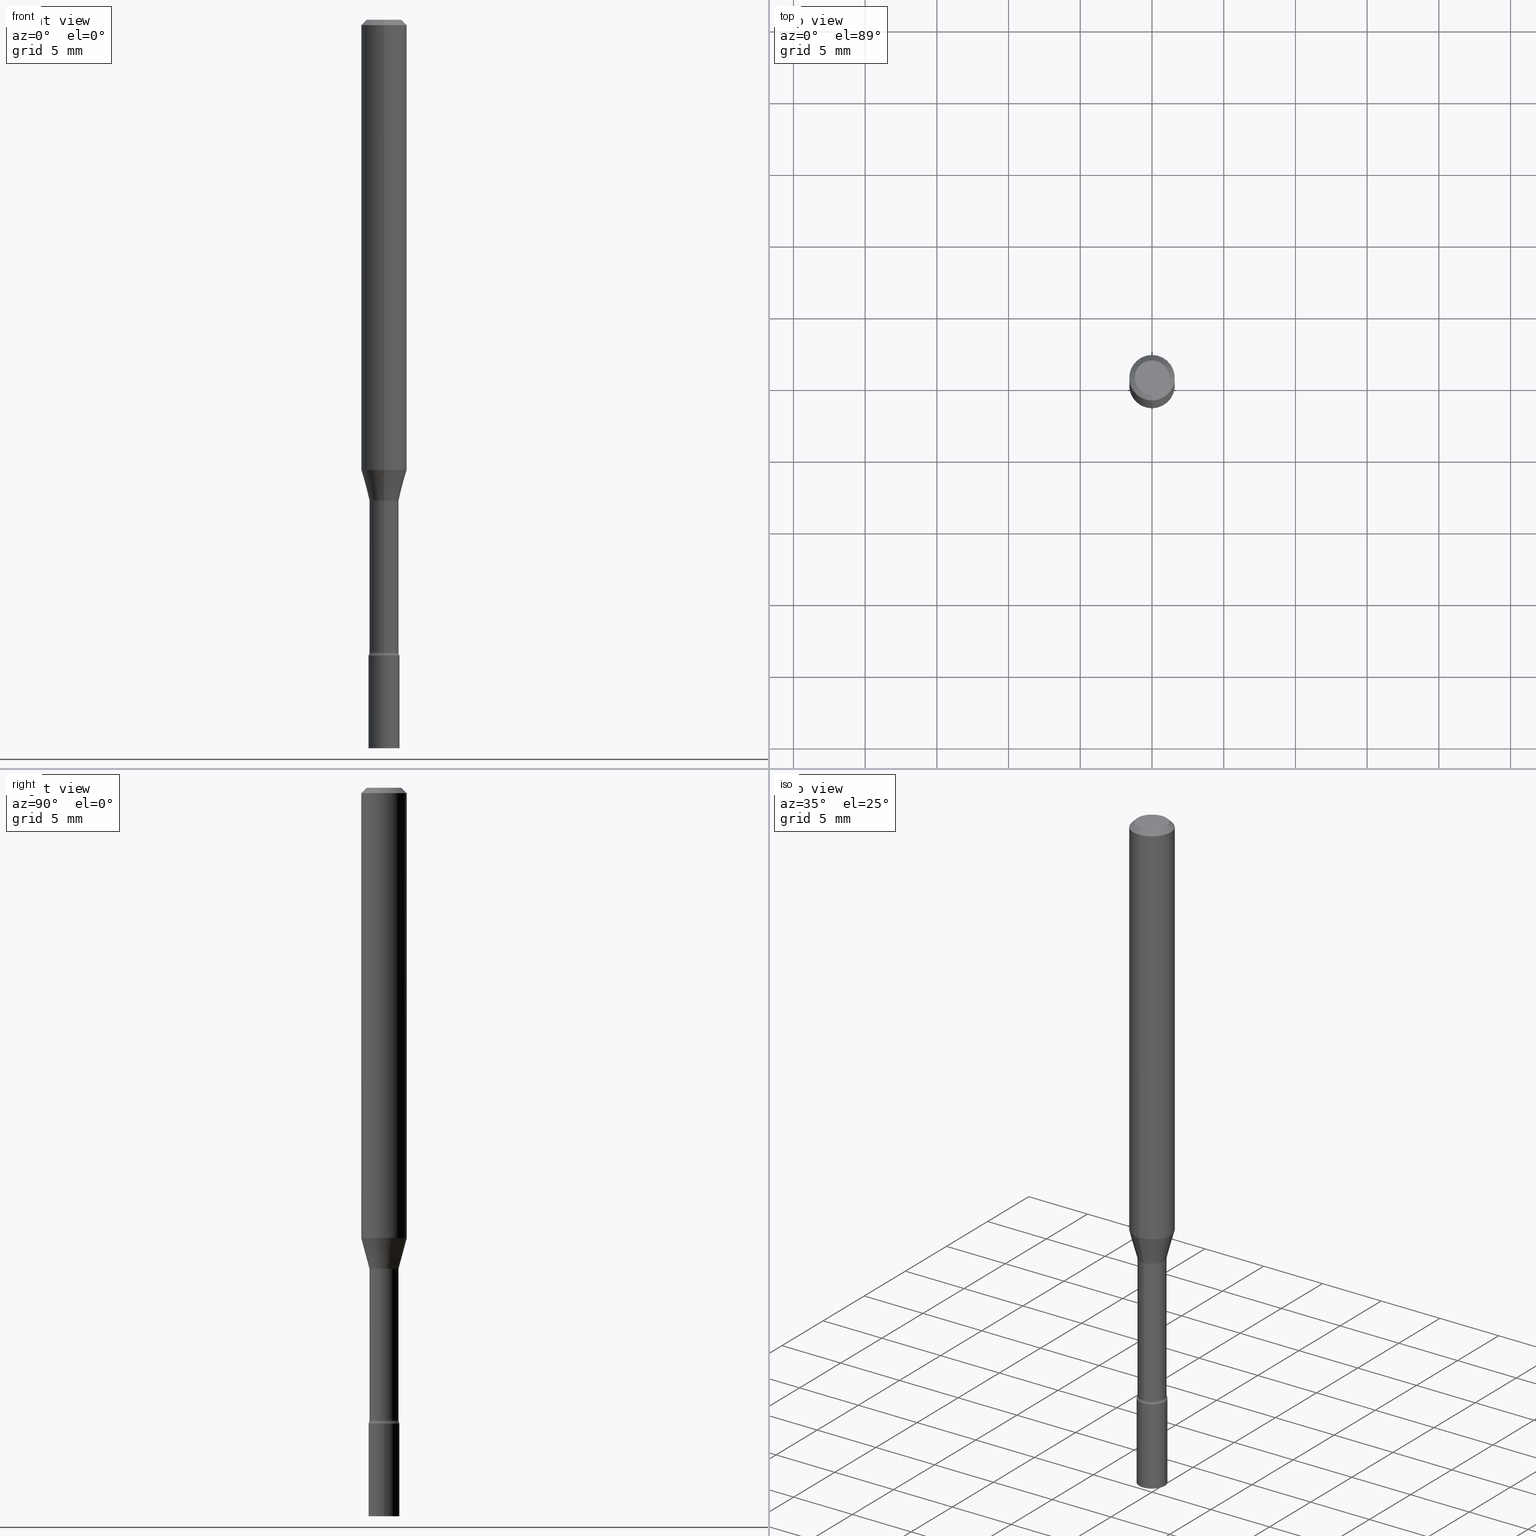
[diagram: canonical four-view strip — front | top / right | iso, engineering-drawing reading convention]
A machine part, canonical four-view strip (front | top / right | iso — engineering-drawing reading convention). The complete STEP part file that produces these views, byte-faithful:
ISO-10303-21;
HEADER;
FILE_DESCRIPTION (( 'STEP AP203' ),
    '1' );
FILE_NAME ('03473.STEP',
    '2024-03-08T21:28:06',
    ( '' ),
    ( '' ),
    'SwSTEP 2.0',
    'SolidWorks 2023',
    '' );
FILE_SCHEMA (( 'CONFIG_CONTROL_DESIGN' ));
ENDSEC;

DATA;
#1 = CARTESIAN_POINT ( 'NONE',  ( 0.000000000000000000, 0.000000000000000000, 0.000000000000000000 ) ) ;
#2 = EDGE_CURVE ( 'NONE', #267, #244, #341, .T. ) ;
#3 = VECTOR ( 'NONE', #179, 39.37007874015748143 ) ;
#4 = APPROVAL_PERSON_ORGANIZATION ( #421, #228, #314 ) ;
#5 = CARTESIAN_POINT ( 'NONE',  ( 0.000000000000000000, 0.000000000000000000, 0.000000000000000000 ) ) ;
#6 = DIMENSIONAL_EXPONENTS ( 1.000000000000000000, 0.000000000000000000, 0.000000000000000000, 0.000000000000000000, 0.000000000000000000, 0.000000000000000000, 0.000000000000000000 ) ;
#7 = CARTESIAN_POINT ( 'NONE',  ( 2.838618229362026185E-16, 0.03994999999999538504, -1.321974787463811474 ) ) ;
#8 = DATE_AND_TIME ( #485, #132 ) ;
#9 = EDGE_CURVE ( 'NONE', #196, #464, #26, .T. ) ;
#10 = DIRECTION ( 'NONE',  ( -2.445445449286633018E-29, 3.491514787251194982E-15, 1.000000000000000000 ) ) ;
#11 = APPLICATION_CONTEXT ( 'configuration controlled 3d designs of mechanical parts and assemblies' ) ;
#12 = APPROVAL_STATUS ( 'not_yet_approved' ) ;
#13 = ORIENTED_EDGE ( 'NONE', *, *, #243, .F. ) ;
#14 = PLANE ( 'NONE',  #118 ) ;
#15 = ADVANCED_FACE ( 'NONE', ( #375 ), #470, .F. ) ;
#16 = AXIS2_PLACEMENT_3D ( 'NONE', #81, #437, #123 ) ;
#17 = PERSON_AND_ORGANIZATION ( #313, #289 ) ;
#18 = ORIENTED_EDGE ( 'NONE', *, *, #86, .T. ) ;
#19 = CIRCLE ( 'NONE', #397, 0.06250000000000000000 ) ;
#20 = APPROVAL_ROLE ( '' ) ;
#21 = DIRECTION ( 'NONE',  ( -2.445445449286633018E-29, 3.491514787251194982E-15, 1.000000000000000000 ) ) ;
#22 = APPLICATION_CONTEXT ( 'configuration controlled 3d designs of mechanical parts and assemblies' ) ;
#23 = CARTESIAN_POINT ( 'NONE',  ( 3.022184816787956639E-29, -4.314961505561019667E-15, -1.235842254289322151 ) ) ;
#24 = ORIENTED_EDGE ( 'NONE', *, *, #214, .T. ) ;
#25 = ORIENTED_EDGE ( 'NONE', *, *, #376, .F. ) ;
#26 = CIRCLE ( 'NONE', #417, 0.06250000000000000000 ) ;
#27 = AXIS2_PLACEMENT_3D ( 'NONE', #329, #95, #372 ) ;
#28 = LINE ( 'NONE', #158, #187 ) ;
#29 = DIRECTION ( 'NONE',  ( 1.000000000000000000, -6.982962677686276177E-15, 0.000000000000000000 ) ) ;
#30 = ORIENTED_EDGE ( 'NONE', *, *, #167, .T. ) ;
#31 = EDGE_LOOP ( 'NONE', ( #53, #514, #428, #494 ) ) ;
#32 = UNCERTAINTY_MEASURE_WITH_UNIT (LENGTH_MEASURE( 1.000000000000000082E-05 ), #127, 'distance_accuracy_value', 'NONE');
#33 = AXIS2_PLACEMENT_3D ( 'NONE', #366, #215, #364 ) ;
#34 = CIRCLE ( 'NONE', #492, 0.04249999999999999611 ) ;
#35 = ORIENTED_EDGE ( 'NONE', *, *, #486, .F. ) ;
#36 = CARTESIAN_POINT ( 'NONE',  ( -0.04249999999999999611, -6.235818144285747159E-15, -2.000000000000000000 ) ) ;
#37 = DIRECTION ( 'NONE',  ( -6.982962677686266711E-15, -1.000000000000000000, 3.491514787251194588E-15 ) ) ;
#38 = ORIENTED_EDGE ( 'NONE', *, *, #373, .F. ) ;
#39 = CARTESIAN_POINT ( 'NONE',  ( 3.232817228075041045E-29, -4.615694518803152700E-15, -1.321974787463811252 ) ) ;
#40 = VECTOR ( 'NONE', #326, 39.37007874015748854 ) ;
#41 = CIRCLE ( 'NONE', #484, 0.06250000000000000000 ) ;
#42 = SHAPE_DEFINITION_REPRESENTATION ( #368, #194 ) ;
#43 = DIRECTION ( 'NONE',  ( -6.982962677686265922E-15, -1.000000000000000000, 6.751786635945950546E-15 ) ) ;
#44 = LINE ( 'NONE', #47, #131 ) ;
#45 = EDGE_CURVE ( 'NONE', #520, #271, #432, .T. ) ;
#46 = FACE_OUTER_BOUND ( 'NONE', #31, .T. ) ;
#47 = CARTESIAN_POINT ( 'NONE',  ( -0.04249999999999999611, 3.019806626980425514E-16, -2.090547413358334859E-30 ) ) ;
#48 = CARTESIAN_POINT ( 'NONE',  ( 4.440892098500929873E-16, 0.06249999999999572564, -1.235842254289322373 ) ) ;
#49 =( NAMED_UNIT ( * ) PLANE_ANGLE_UNIT ( ) SI_UNIT ( $, .RADIAN. ) );
#50 = AXIS2_PLACEMENT_3D ( 'NONE', #446, #87, #280 ) ;
#51 = CONICAL_SURFACE ( 'NONE', #213, 0.04046111260566398471, 0.2617993877991500740 ) ;
#52 = MECHANICAL_CONTEXT ( 'NONE', #22, 'mechanical' ) ;
#53 = ORIENTED_EDGE ( 'NONE', *, *, #257, .F. ) ;
#54 = ORIENTED_EDGE ( 'NONE', *, *, #214, .F. ) ;
#55 = CARTESIAN_POINT ( 'NONE',  ( -3.773273898774340269E-16, -0.04749999999999999362, 1.369346302659450956E-16 ) ) ;
#56 = CIRCLE ( 'NONE', #109, 0.04249999999999999611 ) ;
#57 = EDGE_LOOP ( 'NONE', ( #114, #304 ) ) ;
#58 = MANIFOLD_SOLID_BREP ( 'Body-Move/Copy2[2]', #328 ) ;
#59 = DIRECTION ( 'NONE',  ( -6.982962677686265922E-15, -1.000000000000000000, 3.491514787251194982E-15 ) ) ;
#60 = ORIENTED_EDGE ( 'NONE', *, *, #78, .T. ) ;
#61 = CALENDAR_DATE ( 2024, 8, 3 ) ;
#62 = ADVANCED_FACE ( 'NONE', ( #453 ), #154, .F. ) ;
#63 = CARTESIAN_POINT ( 'NONE',  ( 3.223323310234520288E-29, -4.602139460955186283E-15, -1.318092501787273330 ) ) ;
#64 = DESIGN_CONTEXT ( 'detailed design', #11, 'design' ) ;
#65 = CARTESIAN_POINT ( 'NONE',  ( 3.668168173929956814E-31, -5.237272180876803123E-17, -0.01500000000000003067 ) ) ;
#66 = CALENDAR_DATE ( 2024, 8, 3 ) ;
#67 = ORIENTED_EDGE ( 'NONE', *, *, #291, .F. ) ;
#68 = EDGE_LOOP ( 'NONE', ( #197, #516, #344, #256 ) ) ;
#69 = CIRCLE ( 'NONE', #237, 0.03995000000000000634 ) ;
#70 = VECTOR ( 'NONE', #431, 39.37007874015748143 ) ;
#71 = ORIENTED_EDGE ( 'NONE', *, *, #171, .T. ) ;
#72 = VERTEX_POINT ( 'NONE', #139 ) ;
#73 = EDGE_CURVE ( 'NONE', #464, #196, #450, .T. ) ;
#74 = EDGE_LOOP ( 'NONE', ( #35, #269, #307, #273 ) ) ;
#75 = APPROVAL_ROLE ( '' ) ;
#76 = CIRCLE ( 'NONE', #483, 0.04249999999999999611 ) ;
#77 = CIRCLE ( 'NONE', #206, 0.04749999999999999362 ) ;
#78 = EDGE_CURVE ( 'NONE', #510, #202, #189, .T. ) ;
#79 = VERTEX_POINT ( 'NONE', #339 ) ;
#80 = CC_DESIGN_DATE_AND_TIME_ASSIGNMENT ( #336, #146, ( #172 ) ) ;
#81 = CARTESIAN_POINT ( 'NONE',  ( 0.000000000000000000, 0.000000000000000000, 0.000000000000000000 ) ) ;
#82 = CARTESIAN_POINT ( 'NONE',  ( 7.070350657741693515E-46, -1.009478002453811486E-31, -2.891232212848667046E-17 ) ) ;
#83 = EDGE_CURVE ( 'NONE', #234, #267, #425, .T. ) ;
#84 = CIRCLE ( 'NONE', #334, 0.04046111260566398471 ) ;
#85 = LINE ( 'NONE', #249, #323 ) ;
#86 = EDGE_CURVE ( 'NONE', #234, #473, #84, .T. ) ;
#87 = DIRECTION ( 'NONE',  ( -2.445445449286633018E-29, 3.491514787251194982E-15, 1.000000000000000000 ) ) ;
#88 = DIRECTION ( 'NONE',  ( -6.982962677686265133E-15, -1.000000000000000000, 6.838167693777879394E-15 ) ) ;
#89 = CARTESIAN_POINT ( 'NONE',  ( 3.657913531386922851E-16, 0.04046111260565938422, -1.318092501787273552 ) ) ;
#90 = FACE_OUTER_BOUND ( 'NONE', #353, .T. ) ;
#91 = AXIS2_PLACEMENT_3D ( 'NONE', #239, #115, #275 ) ;
#92 = CIRCLE ( 'NONE', #238, 0.03995000000000005491 ) ;
#93 = CARTESIAN_POINT ( 'NONE',  ( 3.022184816787956639E-29, -4.314961505561019667E-15, -1.235842254289322151 ) ) ;
#94 = CARTESIAN_POINT ( 'NONE',  ( 3.232817228075041045E-29, -4.615694518803152700E-15, -1.321974787463811252 ) ) ;
#95 = DIRECTION ( 'NONE',  ( -2.445445449286633018E-29, 3.491514787251194982E-15, 1.000000000000000000 ) ) ;
#96 = CARTESIAN_POINT ( 'NONE',  ( 3.840629472727447874E-16, 0.04749999999999999362, -1.947592745229183872E-16 ) ) ;
#97 = APPLICATION_PROTOCOL_DEFINITION ( 'international standard', 'config_control_design', 1994, #11 ) ;
#98 = DIRECTION ( 'NONE',  ( -2.445445449286633018E-29, 3.491514787251194982E-15, 1.000000000000000000 ) ) ;
#99 = ADVANCED_FACE ( 'NONE', ( #456 ), #295, .T. ) ;
#100 = FACE_OUTER_BOUND ( 'NONE', #157, .T. ) ;
#101 = AXIS2_PLACEMENT_3D ( 'NONE', #442, #403, #405 ) ;
#102 = APPROVAL_PERSON_ORGANIZATION ( #369, #424, #20 ) ;
#103 = APPLICATION_PROTOCOL_DEFINITION ( 'international standard', 'config_control_design', 1994, #22 ) ;
#104 = CARTESIAN_POINT ( 'NONE',  ( 7.070350657741693515E-46, -1.009478002453811486E-31, -2.891232212848667046E-17 ) ) ;
#105 = DIRECTION ( 'NONE',  ( -6.982962677686265922E-15, -1.000000000000000000, 3.491514787251194982E-15 ) ) ;
#106 = CC_DESIGN_PERSON_AND_ORGANIZATION_ASSIGNMENT ( #220, #374, ( #500 ) ) ;
#107 = DATE_TIME_ROLE ( 'classification_date' ) ;
#108 = DIRECTION ( 'NONE',  ( 1.000000000000000000, -6.982962677686276177E-15, 0.000000000000000000 ) ) ;
#109 = AXIS2_PLACEMENT_3D ( 'NONE', #445, #21, #134 ) ;
#110 = EDGE_CURVE ( 'NONE', #510, #261, #396, .T. ) ;
#111 = DATE_AND_TIME ( #66, #460 ) ;
#112 = EDGE_LOOP ( 'NONE', ( #18, #113, #385, #67 ) ) ;
#113 = ORIENTED_EDGE ( 'NONE', *, *, #243, .T. ) ;
#114 = ORIENTED_EDGE ( 'NONE', *, *, #110, .T. ) ;
#115 = DIRECTION ( 'NONE',  ( -2.445468806185136597E-29, 3.491481338843145583E-15, 1.000000000000000000 ) ) ;
#116 = PERSON_AND_ORGANIZATION_ROLE ( 'classification_officer' ) ;
#117 = DIRECTION ( 'NONE',  ( 2.445445449286633018E-29, -3.491514787251194982E-15, -1.000000000000000000 ) ) ;
#118 = AXIS2_PLACEMENT_3D ( 'NONE', #496, #259, #254 ) ;
#119 = DIRECTION ( 'NONE',  ( -6.982962677686265133E-15, -1.000000000000000000, 3.491514787251194588E-15 ) ) ;
#120 = EDGE_CURVE ( 'NONE', #271, #79, #359, .T. ) ;
#121 = CARTESIAN_POINT ( 'NONE',  ( 4.890937612370273194E-29, -6.982962677686291165E-15, -2.000000000000000000 ) ) ;
#122 = DIRECTION ( 'NONE',  ( -6.982962677686265922E-15, -1.000000000000000000, 3.483106191921935554E-15 ) ) ;
#123 = DIRECTION ( 'NONE',  ( -6.982962677686265922E-15, -1.000000000000000000, 3.491514787251194982E-15 ) ) ;
#124 = DIRECTION ( 'NONE',  ( -2.445445449286633018E-29, 3.491514787251194982E-15, 1.000000000000000000 ) ) ;
#125 = DIRECTION ( 'NONE',  ( -6.982962677686266711E-15, -1.000000000000000000, 0.000000000000000000 ) ) ;
#126 = DIRECTION ( 'NONE',  ( 6.982962677686265922E-15, 1.000000000000000000, -3.483106191921935554E-15 ) ) ;
#127 =( CONVERSION_BASED_UNIT ( 'INCH', #327 ) LENGTH_UNIT ( ) NAMED_UNIT ( #6 ) );
#128 = CARTESIAN_POINT ( 'NONE',  ( 4.246842609821854731E-29, -6.063481716857332136E-15, -1.736633549139569688 ) ) ;
#129 = DIRECTION ( 'NONE',  ( -6.982962677686265922E-15, -1.000000000000000000, 6.751786635945950546E-15 ) ) ;
#130 =( LENGTH_UNIT ( ) NAMED_UNIT ( * ) SI_UNIT ( $, .METRE. ) );
#131 = VECTOR ( 'NONE', #322, 39.37007874015748143 ) ;
#132 = LOCAL_TIME ( 16, 28, 6.000000000000000000, #436 ) ;
#133 = DIRECTION ( 'NONE',  ( -2.445445449286633018E-29, 3.491514787251194982E-15, 1.000000000000000000 ) ) ;
#134 = DIRECTION ( 'NONE',  ( -6.982962677686266711E-15, -1.000000000000000000, 6.427877632151208176E-15 ) ) ;
#135 = FACE_OUTER_BOUND ( 'NONE', #151, .T. ) ;
#136 = DIRECTION ( 'NONE',  ( -2.445445449286633018E-29, 3.491514787251194982E-15, 1.000000000000000000 ) ) ;
#137 = EDGE_CURVE ( 'NONE', #156, #192, #28, .T. ) ;
#138 = COORDINATED_UNIVERSAL_TIME_OFFSET ( 5, 0, .BEHIND. ) ;
#139 = CARTESIAN_POINT ( 'NONE',  ( -0.04249999999999999611, -6.235818144285747159E-15, -1.745000000000000107 ) ) ;
#140 = DIRECTION ( 'NONE',  ( -6.982962677686265922E-15, -1.000000000000000000, 6.751786635945950546E-15 ) ) ;
#141 = AXIS2_PLACEMENT_3D ( 'NONE', #260, #414, #451 ) ;
#142 = AXIS2_PLACEMENT_3D ( 'NONE', #208, #325, #126 ) ;
#143 = EDGE_LOOP ( 'NONE', ( #502, #462, #475, #240 ) ) ;
#144 = CARTESIAN_POINT ( 'NONE',  ( 2.929212428171439828E-16, 0.03994999999999399726, -1.736633549139569910 ) ) ;
#145 = ORIENTED_EDGE ( 'NONE', *, *, #83, .F. ) ;
#146 = DATE_TIME_ROLE ( 'creation_date' ) ;
#147 = ADVANCED_FACE ( 'NONE', ( #476 ), #282, .F. ) ;
#148 = ORIENTED_EDGE ( 'NONE', *, *, #173, .F. ) ;
#149 = DIRECTION ( 'NONE',  ( -6.982962677686265922E-15, -1.000000000000000000, 3.491514787251194982E-15 ) ) ;
#150 = CARTESIAN_POINT ( 'NONE',  ( 2.838618229361602172E-16, 0.03995000000000003409, -1.394860157506853398E-16 ) ) ;
#151 = EDGE_LOOP ( 'NONE', ( #153, #395, #60, #512 ) ) ;
#152 = PERSON_AND_ORGANIZATION_ROLE ( 'creator' ) ;
#153 = ORIENTED_EDGE ( 'NONE', *, *, #195, .F. ) ;
#154 = TOROIDAL_SURFACE ( 'NONE', #247, 0.05495000000000003354, 0.01499999999999998036 ) ;
#155 = FACE_OUTER_BOUND ( 'NONE', #186, .T. ) ;
#156 = VERTEX_POINT ( 'NONE', #426 ) ;
#157 = EDGE_LOOP ( 'NONE', ( #279, #379 ) ) ;
#158 = CARTESIAN_POINT ( 'NONE',  ( 0.04249999999999999611, -2.967759138016663549E-16, 2.072375129713272502E-30 ) ) ;
#159 = CARTESIAN_POINT ( 'NONE',  ( -4.364351673553916201E-16, -0.06250000000000000000, 2.182196742031996864E-16 ) ) ;
#160 = CARTESIAN_POINT ( 'NONE',  ( 2.967759138017089534E-16, 0.04249999999999390377, -1.745000000000000329 ) ) ;
#161 = PERSON_AND_ORGANIZATION_ROLE ( 'design_supplier' ) ;
#162 = ORIENTED_EDGE ( 'NONE', *, *, #383, .T. ) ;
#163 = APPROVAL_STATUS ( 'not_yet_approved' ) ;
#164 = AXIS2_PLACEMENT_3D ( 'NONE', #266, #343, #301 ) ;
#165 = FACE_OUTER_BOUND ( 'NONE', #509, .T. ) ;
#166 = CARTESIAN_POINT ( 'NONE',  ( 3.668168173929956814E-31, -5.237272180876803123E-17, -0.01500000000000003067 ) ) ;
#167 = EDGE_CURVE ( 'NONE', #520, #346, #212, .T. ) ;
#168 = TOROIDAL_SURFACE ( 'NONE', #50, 0.05494999999999999191, 0.01500000000000001506 ) ;
#169 = LOCAL_TIME ( 16, 28, 6.000000000000000000, #178 ) ;
#170 = DIRECTION ( 'NONE',  ( -6.982962677686265922E-15, -1.000000000000000000, 6.838167693777870716E-15 ) ) ;
#171 = EDGE_CURVE ( 'NONE', #346, #79, #56, .T. ) ;
#172 = PRODUCT_DEFINITION ( 'UNKNOWN', '', #188, #64 ) ;
#173 = EDGE_CURVE ( 'NONE', #520, #267, #227, .T. ) ;
#174 = CARTESIAN_POINT ( 'NONE',  ( 2.967759138017151657E-16, 0.04249999999999301559, -2.000000000000000444 ) ) ;
#175 = DIRECTION ( 'NONE',  ( -2.445445449286633018E-29, 3.491514787251194982E-15, 1.000000000000000000 ) ) ;
#176 = AXIS2_PLACEMENT_3D ( 'NONE', #166, #117, #441 ) ;
#177 = AXIS2_PLACEMENT_3D ( 'NONE', #415, #175, #292 ) ;
#178 = COORDINATED_UNIVERSAL_TIME_OFFSET ( 5, 0, .BEHIND. ) ;
#179 = DIRECTION ( 'NONE',  ( 4.937700262164548042E-15, 0.7071067811865451302, -0.7071067811865499042 ) ) ;
#180 = APPROVAL_DATE_TIME ( #290, #424 ) ;
#181 = EDGE_CURVE ( 'NONE', #244, #267, #69, .T. ) ;
#182 = ORIENTED_EDGE ( 'NONE', *, *, #365, .F. ) ;
#183 = DIRECTION ( 'NONE',  ( -2.445445449286633018E-29, 3.491514787251194982E-15, 1.000000000000000000 ) ) ;
#184 = ORIENTED_EDGE ( 'NONE', *, *, #406, .T. ) ;
#185 = LINE ( 'NONE', #150, #231 ) ;
#186 = EDGE_LOOP ( 'NONE', ( #480, #226, #420, #469 ) ) ;
#187 = VECTOR ( 'NONE', #467, 39.37007874015748143 ) ;
#188 = PRODUCT_DEFINITION_FORMATION_WITH_SPECIFIED_SOURCE ( 'ANY', '', #500, .NOT_KNOWN. ) ;
#189 = LINE ( 'NONE', #216, #3 ) ;
#190 = EDGE_LOOP ( 'NONE', ( #233, #277, #472, #145 ) ) ;
#191 = CARTESIAN_POINT ( 'NONE',  ( -3.837137991388180854E-16, -0.05495000000000609813, -1.736633549139569244 ) ) ;
#192 = VERTEX_POINT ( 'NONE', #490 ) ;
#193 = CLOSED_SHELL ( 'NONE', ( #268, #517, #448, #99 ) ) ;
#194 = ADVANCED_BREP_SHAPE_REPRESENTATION ( '03473', ( #401, #58, #360 ), #335 ) ;
#195 = EDGE_CURVE ( 'NONE', #261, #309, #85, .T. ) ;
#196 = VERTEX_POINT ( 'NONE', #48 ) ;
#197 = ORIENTED_EDGE ( 'NONE', *, *, #400, .F. ) ;
#198 = LINE ( 'NONE', #363, #278 ) ;
#199 = EDGE_CURVE ( 'NONE', #384, #72, #44, .T. ) ;
#200 = CARTESIAN_POINT ( 'NONE',  ( 3.904432333002176917E-16, 0.05494999999999397589, -1.736633549139569910 ) ) ;
#201 = FACE_OUTER_BOUND ( 'NONE', #222, .T. ) ;
#202 = VERTEX_POINT ( 'NONE', #318 ) ;
#203 = CYLINDRICAL_SURFACE ( 'NONE', #16, 0.06250000000000000000 ) ;
#204 =( NAMED_UNIT ( * ) SI_UNIT ( $, .STERADIAN. ) SOLID_ANGLE_UNIT ( ) );
#205 = VECTOR ( 'NONE', #362, 39.37007874015748854 ) ;
#206 = AXIS2_PLACEMENT_3D ( 'NONE', #82, #393, #37 ) ;
#207 = EDGE_LOOP ( 'NONE', ( #357, #54 ) ) ;
#208 = CARTESIAN_POINT ( 'NONE',  ( 3.668168173929956814E-31, -5.237272180876803123E-17, -0.01500000000000003067 ) ) ;
#209 = CARTESIAN_POINT ( 'NONE',  ( -4.364351673553912750E-16, -0.06250000000000005551, -0.01499999999999981209 ) ) ;
#210 = DIRECTION ( 'NONE',  ( 1.000000000000000000, -6.982962677686276177E-15, 0.000000000000000000 ) ) ;
#211 = PRODUCT_RELATED_PRODUCT_CATEGORY ( 'detail', '', ( #500 ) ) ;
#212 = CIRCLE ( 'NONE', #489, 0.01499999999999997689 ) ;
#213 = AXIS2_PLACEMENT_3D ( 'NONE', #409, #258, #129 ) ;
#214 = EDGE_CURVE ( 'NONE', #384, #156, #503, .T. ) ;
#215 = DIRECTION ( 'NONE',  ( 1.000000000000000000, -7.105427357601001070E-15, 4.926315918166940991E-29 ) ) ;
#216 = CARTESIAN_POINT ( 'NONE',  ( 4.364351673553919652E-16, 0.06249999999999995143, -0.01500000000000024751 ) ) ;
#217 = FACE_OUTER_BOUND ( 'NONE', #390, .T. ) ;
#218 = PLANE ( 'NONE',  #380 ) ;
#219 = AXIS2_PLACEMENT_3D ( 'NONE', #232, #382, #149 ) ;
#220 = PERSON_AND_ORGANIZATION ( #313, #289 ) ;
#221 = ORIENTED_EDGE ( 'NONE', *, *, #486, .T. ) ;
#222 = EDGE_LOOP ( 'NONE', ( #229, #429, #286, #148 ) ) ;
#223 = EDGE_LOOP ( 'NONE', ( #387, #435, #30, #71 ) ) ;
#224 = ADVANCED_FACE ( 'NONE', ( #481 ), #288, .T. ) ;
#225 = DATE_AND_TIME ( #61, #381 ) ;
#226 = ORIENTED_EDGE ( 'NONE', *, *, #199, .T. ) ;
#227 = LINE ( 'NONE', #242, #252 ) ;
#228 = APPROVAL ( #163, 'UNSPECIFIED' ) ;
#229 = ORIENTED_EDGE ( 'NONE', *, *, #45, .T. ) ;
#230 = AXIS2_PLACEMENT_3D ( 'NONE', #121, #319, #210 ) ;
#231 = VECTOR ( 'NONE', #303, 39.37007874015748143 ) ;
#232 = CARTESIAN_POINT ( 'NONE',  ( 4.246883172195400307E-29, -6.063423629229748682E-15, -1.736633549139569688 ) ) ;
#233 = ORIENTED_EDGE ( 'NONE', *, *, #406, .F. ) ;
#234 = VERTEX_POINT ( 'NONE', #487 ) ;
#235 = EDGE_LOOP ( 'NONE', ( #182, #221, #348, #466 ) ) ;
#236 = DIRECTION ( 'NONE',  ( 1.000000000000000000, -7.105427357601001070E-15, 4.926315918166940991E-29 ) ) ;
#237 = AXIS2_PLACEMENT_3D ( 'NONE', #39, #444, #88 ) ;
#238 = AXIS2_PLACEMENT_3D ( 'NONE', #128, #251, #170 ) ;
#239 = CARTESIAN_POINT ( 'NONE',  ( 4.267343066793063832E-29, -6.092634936281288846E-15, -1.745000000000000107 ) ) ;
#240 = ORIENTED_EDGE ( 'NONE', *, *, #383, .F. ) ;
#241 = ADVANCED_FACE ( 'NONE', ( #246 ), #203, .T. ) ;
#242 = CARTESIAN_POINT ( 'NONE',  ( -2.789693589735665255E-16, -0.03995000000000003409, 1.394860157506853398E-16 ) ) ;
#243 = EDGE_CURVE ( 'NONE', #473, #196, #281, .T. ) ;
#244 = VERTEX_POINT ( 'NONE', #7 ) ;
#245 = DIRECTION ( 'NONE',  ( -2.445445449286633018E-29, 3.491514787251194982E-15, 1.000000000000000000 ) ) ;
#246 = FACE_OUTER_BOUND ( 'NONE', #143, .T. ) ;
#247 = AXIS2_PLACEMENT_3D ( 'NONE', #418, #499, #59 ) ;
#248 = CARTESIAN_POINT ( 'NONE',  ( -4.364351673553612490E-16, -0.06250000000000427436, -1.235842254289321929 ) ) ;
#249 = CARTESIAN_POINT ( 'NONE',  ( -4.287811248607203282E-16, -0.06250000000000005551, -0.01499999999999981209 ) ) ;
#250 = APPROVAL ( #515, 'UNSPECIFIED' ) ;
#251 = DIRECTION ( 'NONE',  ( -2.445445449286633018E-29, 3.491514787251194982E-15, 1.000000000000000000 ) ) ;
#252 = VECTOR ( 'NONE', #124, 39.37007874015748143 ) ;
#253 = SECURITY_CLASSIFICATION ( '', '', #312 ) ;
#254 = DIRECTION ( 'NONE',  ( 1.000000000000000000, -6.982962677686265922E-15, 4.876176775795935793E-29 ) ) ;
#255 = DIRECTION ( 'NONE',  ( -2.445445449286633018E-29, 3.491514787251194982E-15, 1.000000000000000000 ) ) ;
#256 = ORIENTED_EDGE ( 'NONE', *, *, #78, .F. ) ;
#257 = EDGE_CURVE ( 'NONE', #473, #244, #270, .T. ) ;
#258 = DIRECTION ( 'NONE',  ( -2.445445449286633018E-29, 3.491514787251194982E-15, 1.000000000000000000 ) ) ;
#259 = DIRECTION ( 'NONE',  ( -2.438088387897960049E-29, 3.491481338843145188E-15, 1.000000000000000000 ) ) ;
#260 = CARTESIAN_POINT ( 'NONE',  ( -3.837137991388278969E-16, -0.05495000000000461321, -1.321974787463810808 ) ) ;
#261 = VERTEX_POINT ( 'NONE', #55 ) ;
#262 = CC_DESIGN_APPROVAL ( #228, ( #253 ) ) ;
#263 = ADVANCED_FACE ( 'NONE', ( #100 ), #347, .F. ) ;
#264 = CC_DESIGN_PERSON_AND_ORGANIZATION_ASSIGNMENT ( #519, #152, ( #188 ) ) ;
#265 = DIRECTION ( 'NONE',  ( -6.982962677686265922E-15, -1.000000000000000000, 6.838167693777870716E-15 ) ) ;
#266 = CARTESIAN_POINT ( 'NONE',  ( 0.000000000000000000, 0.000000000000000000, 0.000000000000000000 ) ) ;
#267 = VERTEX_POINT ( 'NONE', #477 ) ;
#268 = ADVANCED_FACE ( 'NONE', ( #155 ), #272, .T. ) ;
#269 = ORIENTED_EDGE ( 'NONE', *, *, #120, .T. ) ;
#270 = CIRCLE ( 'NONE', #33, 0.01500000000000001159 ) ;
#271 = VERTEX_POINT ( 'NONE', #144 ) ;
#272 = CYLINDRICAL_SURFACE ( 'NONE', #164, 0.04249999999999999611 ) ;
#273 = ORIENTED_EDGE ( 'NONE', *, *, #167, .F. ) ;
#274 = COORDINATED_UNIVERSAL_TIME_OFFSET ( 5, 0, .BEHIND. ) ;
#275 = DIRECTION ( 'NONE',  ( 1.000000000000000000, -6.982962677686276177E-15, 0.000000000000000000 ) ) ;
#276 = AXIS2_PLACEMENT_3D ( 'NONE', #439, #245, #43 ) ;
#277 = ORIENTED_EDGE ( 'NONE', *, *, #257, .T. ) ;
#278 = VECTOR ( 'NONE', #518, 39.37007874015748143 ) ;
#279 = ORIENTED_EDGE ( 'NONE', *, *, #171, .F. ) ;
#280 = DIRECTION ( 'NONE',  ( -6.982962677686265922E-15, -1.000000000000000000, 3.491514787251194982E-15 ) ) ;
#281 = LINE ( 'NONE', #398, #205 ) ;
#282 = TOROIDAL_SURFACE ( 'NONE', #219, 0.05495000000000003354, 0.01499999999999998036 ) ;
#283 = CARTESIAN_POINT ( 'NONE',  ( -2.825384392229807221E-16, -0.04046111260566858520, -1.318092501787272885 ) ) ;
#284 = FACE_OUTER_BOUND ( 'NONE', #422, .T. ) ;
#285 = EDGE_CURVE ( 'NONE', #192, #72, #34, .T. ) ;
#286 = ORIENTED_EDGE ( 'NONE', *, *, #2, .F. ) ;
#287 = CARTESIAN_POINT ( 'NONE',  ( 3.668168173929956814E-31, -5.237272180876803123E-17, -0.01500000000000003067 ) ) ;
#288 = CONICAL_SURFACE ( 'NONE', #176, 0.06250000000000000000, 0.7853981633974483900 ) ;
#289 = ORGANIZATION ( 'UNSPECIFIED', 'UNSPECIFIED', '' ) ;
#290 = DATE_AND_TIME ( #493, #433 ) ;
#291 = EDGE_CURVE ( 'NONE', #234, #464, #474, .T. ) ;
#292 = DIRECTION ( 'NONE',  ( -6.982962677686265922E-15, -1.000000000000000000, 3.491514787251194982E-15 ) ) ;
#293 = DIRECTION ( 'NONE',  ( -6.982962677686266711E-15, -1.000000000000000000, 6.427877632151208176E-15 ) ) ;
#294 = DIRECTION ( 'NONE',  ( -6.982962677686265133E-15, -1.000000000000000000, 6.838167693777879394E-15 ) ) ;
#295 = PLANE ( 'NONE',  #350 ) ;
#296 = AXIS2_PLACEMENT_3D ( 'NONE', #377, #133, #265 ) ;
#297 = AXIS2_PLACEMENT_3D ( 'NONE', #1, #482, #119 ) ;
#298 = CC_DESIGN_PERSON_AND_ORGANIZATION_ASSIGNMENT ( #386, #161, ( #188 ) ) ;
#299 = DIRECTION ( 'NONE',  ( 1.000000000000000000, 0.000000000000000000, 0.000000000000000000 ) ) ;
#300 = DIRECTION ( 'NONE',  ( 2.445445449286632458E-29, -3.491514787251194982E-15, -1.000000000000000000 ) ) ;
#301 = DIRECTION ( 'NONE',  ( 1.000000000000000000, -6.982962677686267499E-15, 4.876176775795935793E-29 ) ) ;
#302 = ORIENTED_EDGE ( 'NONE', *, *, #137, .T. ) ;
#303 = DIRECTION ( 'NONE',  ( -2.445445449286633018E-29, 3.491514787251194982E-15, 1.000000000000000000 ) ) ;
#304 = ORIENTED_EDGE ( 'NONE', *, *, #400, .T. ) ;
#305 = AXIS2_PLACEMENT_3D ( 'NONE', #160, #311, #349 ) ;
#306 = CIRCLE ( 'NONE', #27, 0.04046111260566398471 ) ;
#307 = ORIENTED_EDGE ( 'NONE', *, *, #508, .T. ) ;
#308 = CARTESIAN_POINT ( 'NONE',  ( 4.267343066793063832E-29, -6.092634936281288846E-15, -1.745000000000000107 ) ) ;
#309 = VERTEX_POINT ( 'NONE', #209 ) ;
#310 = ORIENTED_EDGE ( 'NONE', *, *, #291, .T. ) ;
#311 = DIRECTION ( 'NONE',  ( -2.445445449286632458E-29, 3.491514787251194982E-15, 1.000000000000000000 ) ) ;
#312 = SECURITY_CLASSIFICATION_LEVEL ( 'unclassified' ) ;
#313 = PERSON ( 'UNSPECIFIED', 'UNSPECIFIED', 'UNSPECIFIED', ('UNSPECIFIED'), ('UNSPECIFIED'), ('UNSPECIFIED') ) ;
#314 = APPROVAL_ROLE ( '' ) ;
#315 = CC_DESIGN_DATE_AND_TIME_ASSIGNMENT ( #225, #107, ( #253 ) ) ;
#316 = CIRCLE ( 'NONE', #91, 0.04249999999999999611 ) ;
#317 = AXIS2_PLACEMENT_3D ( 'NONE', #404, #332, #320 ) ;
#318 = CARTESIAN_POINT ( 'NONE',  ( 4.440892098500929873E-16, 0.06249999999999995143, -0.01500000000000024751 ) ) ;
#319 = DIRECTION ( 'NONE',  ( -2.445468806185136597E-29, 3.491481338843145583E-15, 1.000000000000000000 ) ) ;
#320 = DIRECTION ( 'NONE',  ( 1.000000000000000000, -6.982962677686267499E-15, 4.876176775795935793E-29 ) ) ;
#321 = APPROVAL_DATE_TIME ( #8, #228 ) ;
#322 = DIRECTION ( 'NONE',  ( -2.445468806185136877E-29, 3.491481338843145188E-15, 1.000000000000000000 ) ) ;
#323 = VECTOR ( 'NONE', #402, 39.37007874015748143 ) ;
#324 = ADVANCED_FACE ( 'NONE', ( #394 ), #356, .T. ) ;
#325 = DIRECTION ( 'NONE',  ( 2.445445449286633018E-29, -3.491514787251194982E-15, -1.000000000000000000 ) ) ;
#326 = DIRECTION ( 'NONE',  ( -1.807323732225328562E-15, -0.2588190451025179639, 0.9659258262890690894 ) ) ;
#327 = LENGTH_MEASURE_WITH_UNIT ( LENGTH_MEASURE( 0.02539999999999999897 ), #130 );
#328 = CLOSED_SHELL ( 'NONE', ( #15, #399, #147, #224, #241, #412, #331, #434, #440, #358, #263, #62, #324, #330 ) ) ;
#329 = CARTESIAN_POINT ( 'NONE',  ( 3.223323310234520288E-29, -4.602139460955186283E-15, -1.318092501787273330 ) ) ;
#330 = ADVANCED_FACE ( 'NONE', ( #46 ), #168, .F. ) ;
#331 = ADVANCED_FACE ( 'NONE', ( #165 ), #367, .T. ) ;
#332 = DIRECTION ( 'NONE',  ( -2.445468806185136597E-29, 3.491481338843145583E-15, 1.000000000000000000 ) ) ;
#333 = DIRECTION ( 'NONE',  ( 2.438088387897960049E-29, -3.491481338843145188E-15, -1.000000000000000000 ) ) ;
#334 = AXIS2_PLACEMENT_3D ( 'NONE', #63, #370, #140 ) ;
#335 =( GEOMETRIC_REPRESENTATION_CONTEXT ( 3 ) GLOBAL_UNCERTAINTY_ASSIGNED_CONTEXT ( ( #32 ) ) GLOBAL_UNIT_ASSIGNED_CONTEXT ( ( #127, #49, #204 ) ) REPRESENTATION_CONTEXT ( 'NONE', 'WORKASPACE' ) );
#336 = DATE_AND_TIME ( #337, #169 ) ;
#337 = CALENDAR_DATE ( 2024, 8, 3 ) ;
#338 = CARTESIAN_POINT ( 'NONE',  ( 3.232848105305976376E-29, -4.615650300851030950E-15, -1.321974787463811252 ) ) ;
#339 = CARTESIAN_POINT ( 'NONE',  ( 3.019806626980851006E-16, 0.04249999999999389683, -1.745000000000000329 ) ) ;
#340 = EDGE_CURVE ( 'NONE', #156, #384, #76, .T. ) ;
#341 = CIRCLE ( 'NONE', #407, 0.03995000000000000634 ) ;
#342 = AXIS2_PLACEMENT_3D ( 'NONE', #413, #136, #293 ) ;
#343 = DIRECTION ( 'NONE',  ( -2.445468806185136597E-29, 3.491481338843145583E-15, 1.000000000000000000 ) ) ;
#344 = ORIENTED_EDGE ( 'NONE', *, *, #423, .T. ) ;
#345 = ORIENTED_EDGE ( 'NONE', *, *, #9, .T. ) ;
#346 = VERTEX_POINT ( 'NONE', #478 ) ;
#347 = PLANE ( 'NONE',  #305 ) ;
#348 = ORIENTED_EDGE ( 'NONE', *, *, #173, .T. ) ;
#349 = DIRECTION ( 'NONE',  ( -6.982962677686265922E-15, -1.000000000000000000, 3.491514787251194982E-15 ) ) ;
#350 = AXIS2_PLACEMENT_3D ( 'NONE', #174, #333, #458 ) ;
#351 = ORIENTED_EDGE ( 'NONE', *, *, #9, .F. ) ;
#352 = APPROVAL_DATE_TIME ( #111, #250 ) ;
#353 = EDGE_LOOP ( 'NONE', ( #438, #465 ) ) ;
#354 = EDGE_CURVE ( 'NONE', #72, #192, #316, .T. ) ;
#355 = CYLINDRICAL_SURFACE ( 'NONE', #297, 0.03995000000000003409 ) ;
#356 = CYLINDRICAL_SURFACE ( 'NONE', #101, 0.03995000000000003409 ) ;
#357 = ORIENTED_EDGE ( 'NONE', *, *, #340, .F. ) ;
#358 = ADVANCED_FACE ( 'NONE', ( #392 ), #218, .F. ) ;
#359 = CIRCLE ( 'NONE', #389, 0.01499999999999997689 ) ;
#360 = AXIS2_PLACEMENT_3D ( 'NONE', #5, #410, #299 ) ;
#361 = LINE ( 'NONE', #159, #70 ) ;
#362 = DIRECTION ( 'NONE',  ( 1.839019923739598738E-15, 0.2588190451025247363, 0.9659258262890673130 ) ) ;
#363 = CARTESIAN_POINT ( 'NONE',  ( 4.440892098500625669E-16, 0.06250000000000000000, -2.182196742031996864E-16 ) ) ;
#364 = DIRECTION ( 'NONE',  ( 7.105427357601001859E-15, 1.000000000000000000, 0.000000000000000000 ) ) ;
#365 = EDGE_CURVE ( 'NONE', #271, #244, #185, .T. ) ;
#366 = CARTESIAN_POINT ( 'NONE',  ( 3.904432333002072886E-16, 0.05494999999999537060, -1.321974787463811474 ) ) ;
#367 = CONICAL_SURFACE ( 'NONE', #276, 0.04046111260566398471, 0.2617993877991500740 ) ;
#368 = PRODUCT_DEFINITION_SHAPE ( 'NONE', 'NONE',  #172 ) ;
#369 = PERSON_AND_ORGANIZATION ( #313, #289 ) ;
#370 = DIRECTION ( 'NONE',  ( -2.445445449286633018E-29, 3.491514787251194982E-15, 1.000000000000000000 ) ) ;
#371 = CYLINDRICAL_SURFACE ( 'NONE', #177, 0.06250000000000000000 ) ;
#372 = DIRECTION ( 'NONE',  ( -6.982962677686265922E-15, -1.000000000000000000, 6.751786635945950546E-15 ) ) ;
#373 = EDGE_CURVE ( 'NONE', #202, #309, #19, .T. ) ;
#374 = PERSON_AND_ORGANIZATION_ROLE ( 'design_owner' ) ;
#375 = FACE_OUTER_BOUND ( 'NONE', #190, .T. ) ;
#376 = EDGE_CURVE ( 'NONE', #196, #202, #198, .T. ) ;
#377 = CARTESIAN_POINT ( 'NONE',  ( 4.246842609821854731E-29, -6.063481716857332136E-15, -1.736633549139569688 ) ) ;
#378 = DIRECTION ( 'NONE',  ( -2.445468806185136597E-29, 3.491481338843145583E-15, 1.000000000000000000 ) ) ;
#379 = ORIENTED_EDGE ( 'NONE', *, *, #508, .F. ) ;
#380 = AXIS2_PLACEMENT_3D ( 'NONE', #461, #300, #463 ) ;
#381 = LOCAL_TIME ( 16, 28, 6.000000000000000000, #419 ) ;
#382 = DIRECTION ( 'NONE',  ( -2.445445449286633018E-29, 3.491514787251194982E-15, 1.000000000000000000 ) ) ;
#383 = EDGE_CURVE ( 'NONE', #464, #309, #361, .T. ) ;
#384 = VERTEX_POINT ( 'NONE', #36 ) ;
#385 = ORIENTED_EDGE ( 'NONE', *, *, #73, .F. ) ;
#386 = PERSON_AND_ORGANIZATION ( #313, #289 ) ;
#387 = ORIENTED_EDGE ( 'NONE', *, *, #120, .F. ) ;
#388 = DIRECTION ( 'NONE',  ( 7.105427357601001859E-15, 1.000000000000000000, 0.000000000000000000 ) ) ;
#389 = AXIS2_PLACEMENT_3D ( 'NONE', #200, #236, #388 ) ;
#390 = EDGE_LOOP ( 'NONE', ( #25, #345, #162, #38 ) ) ;
#391 = CC_DESIGN_PERSON_AND_ORGANIZATION_ASSIGNMENT ( #17, #455, ( #172 ) ) ;
#392 = FACE_OUTER_BOUND ( 'NONE', #57, .T. ) ;
#393 = DIRECTION ( 'NONE',  ( -2.445445449286633018E-29, 3.491514787251194982E-15, 1.000000000000000000 ) ) ;
#394 = FACE_OUTER_BOUND ( 'NONE', #235, .T. ) ;
#395 = ORIENTED_EDGE ( 'NONE', *, *, #110, .F. ) ;
#396 = CIRCLE ( 'NONE', #443, 0.04749999999999999362 ) ;
#397 = AXIS2_PLACEMENT_3D ( 'NONE', #65, #183, #122 ) ;
#398 = CARTESIAN_POINT ( 'NONE',  ( 2.874934964272917801E-16, 0.04046111260565938422, -1.318092501787273552 ) ) ;
#399 = ADVANCED_FACE ( 'NONE', ( #201 ), #355, .T. ) ;
#400 = EDGE_CURVE ( 'NONE', #261, #510, #77, .T. ) ;
#401 = MANIFOLD_SOLID_BREP ( 'Body-Move/Copy2[1]', #193 ) ;
#402 = DIRECTION ( 'NONE',  ( -4.851104656540964275E-15, -0.7071067811865500152, -0.7071067811865450192 ) ) ;
#403 = DIRECTION ( 'NONE',  ( -2.445445449286633018E-29, 3.491514787251194982E-15, 1.000000000000000000 ) ) ;
#404 = CARTESIAN_POINT ( 'NONE',  ( 0.000000000000000000, 0.000000000000000000, 0.000000000000000000 ) ) ;
#405 = DIRECTION ( 'NONE',  ( -6.982962677686265133E-15, -1.000000000000000000, 3.491514787251194588E-15 ) ) ;
#406 = EDGE_CURVE ( 'NONE', #473, #234, #306, .T. ) ;
#407 = AXIS2_PLACEMENT_3D ( 'NONE', #94, #498, #294 ) ;
#408 = CC_DESIGN_APPROVAL ( #424, ( #172 ) ) ;
#409 = CARTESIAN_POINT ( 'NONE',  ( 3.223323310234520288E-29, -4.602139460955186283E-15, -1.318092501787273330 ) ) ;
#410 = DIRECTION ( 'NONE',  ( 0.000000000000000000, 0.000000000000000000, 1.000000000000000000 ) ) ;
#411 = DIRECTION ( 'NONE',  ( -6.982962677686265922E-15, -1.000000000000000000, 4.370956789862821150E-15 ) ) ;
#412 = ADVANCED_FACE ( 'NONE', ( #495 ), #51, .T. ) ;
#413 = CARTESIAN_POINT ( 'NONE',  ( 4.267302309005175094E-29, -6.092693303753334912E-15, -1.745000000000000107 ) ) ;
#414 = DIRECTION ( 'NONE',  ( -1.000000000000000000, 6.982962677686265922E-15, -4.883557194083112901E-29 ) ) ;
#415 = CARTESIAN_POINT ( 'NONE',  ( 0.000000000000000000, 0.000000000000000000, 0.000000000000000000 ) ) ;
#416 = DIRECTION ( 'NONE',  ( -2.445445449286633018E-29, 3.491514787251194982E-15, 1.000000000000000000 ) ) ;
#417 = AXIS2_PLACEMENT_3D ( 'NONE', #93, #416, #506 ) ;
#418 = CARTESIAN_POINT ( 'NONE',  ( 4.246883172195400307E-29, -6.063423629229748682E-15, -1.736633549139569688 ) ) ;
#419 = COORDINATED_UNIVERSAL_TIME_OFFSET ( 5, 0, .BEHIND. ) ;
#420 = ORIENTED_EDGE ( 'NONE', *, *, #285, .F. ) ;
#421 = PERSON_AND_ORGANIZATION ( #313, #289 ) ;
#422 = EDGE_LOOP ( 'NONE', ( #501, #24, #302, #454 ) ) ;
#423 = EDGE_CURVE ( 'NONE', #309, #202, #41, .T. ) ;
#424 = APPROVAL ( #12, 'UNSPECIFIED' ) ;
#425 = CIRCLE ( 'NONE', #141, 0.01500000000000001159 ) ;
#426 = CARTESIAN_POINT ( 'NONE',  ( 0.04249999999999999611, -7.279738591487957027E-15, -2.000000000000000000 ) ) ;
#427 = CC_DESIGN_APPROVAL ( #250, ( #188 ) ) ;
#428 = ORIENTED_EDGE ( 'NONE', *, *, #83, .T. ) ;
#429 = ORIENTED_EDGE ( 'NONE', *, *, #365, .T. ) ;
#430 = DIRECTION ( 'NONE',  ( -6.982962677686266711E-15, -1.000000000000000000, 3.491514787251194588E-15 ) ) ;
#431 = DIRECTION ( 'NONE',  ( -2.445445449286633018E-29, 3.491514787251194982E-15, 1.000000000000000000 ) ) ;
#432 = CIRCLE ( 'NONE', #296, 0.03995000000000005491 ) ;
#433 = LOCAL_TIME ( 16, 28, 6.000000000000000000, #138 ) ;
#434 = ADVANCED_FACE ( 'NONE', ( #217 ), #371, .T. ) ;
#435 = ORIENTED_EDGE ( 'NONE', *, *, #45, .F. ) ;
#436 = COORDINATED_UNIVERSAL_TIME_OFFSET ( 5, 0, .BEHIND. ) ;
#437 = DIRECTION ( 'NONE',  ( -2.445445449286633018E-29, 3.491514787251194982E-15, 1.000000000000000000 ) ) ;
#438 = ORIENTED_EDGE ( 'NONE', *, *, #285, .T. ) ;
#439 = CARTESIAN_POINT ( 'NONE',  ( 3.223323310234520288E-29, -4.602139460955186283E-15, -1.318092501787273330 ) ) ;
#440 = ADVANCED_FACE ( 'NONE', ( #135 ), #471, .T. ) ;
#441 = DIRECTION ( 'NONE',  ( 6.982962677686265922E-15, 1.000000000000000000, -3.483106191921935554E-15 ) ) ;
#442 = CARTESIAN_POINT ( 'NONE',  ( 0.000000000000000000, 0.000000000000000000, 0.000000000000000000 ) ) ;
#443 = AXIS2_PLACEMENT_3D ( 'NONE', #104, #507, #430 ) ;
#444 = DIRECTION ( 'NONE',  ( -2.445445449286633018E-29, 3.491514787251194982E-15, 1.000000000000000000 ) ) ;
#445 = CARTESIAN_POINT ( 'NONE',  ( 4.267302309005175094E-29, -6.092693303753334912E-15, -1.745000000000000107 ) ) ;
#446 = CARTESIAN_POINT ( 'NONE',  ( 3.232848105305976376E-29, -4.615650300851030950E-15, -1.321974787463811252 ) ) ;
#447 = CYLINDRICAL_SURFACE ( 'NONE', #317, 0.04249999999999999611 ) ;
#448 = ADVANCED_FACE ( 'NONE', ( #284 ), #447, .T. ) ;
#449 = DIRECTION ( 'NONE',  ( -6.982962677686265922E-15, -1.000000000000000000, 3.483106191921935554E-15 ) ) ;
#450 = CIRCLE ( 'NONE', #459, 0.06250000000000000000 ) ;
#451 = DIRECTION ( 'NONE',  ( -6.982962677686266711E-15, -1.000000000000000000, 0.000000000000000000 ) ) ;
#452 = APPROVAL_PERSON_ORGANIZATION ( #511, #250, #75 ) ;
#453 = FACE_OUTER_BOUND ( 'NONE', #223, .T. ) ;
#454 = ORIENTED_EDGE ( 'NONE', *, *, #354, .F. ) ;
#455 = PERSON_AND_ORGANIZATION_ROLE ( 'creator' ) ;
#456 = FACE_OUTER_BOUND ( 'NONE', #207, .T. ) ;
#457 = CARTESIAN_POINT ( 'NONE',  ( 4.890937612370273194E-29, -6.982962677686291165E-15, -2.000000000000000000 ) ) ;
#458 = DIRECTION ( 'NONE',  ( -1.000000000000000000, 6.982962677686265922E-15, -4.876176775795935793E-29 ) ) ;
#459 = AXIS2_PLACEMENT_3D ( 'NONE', #23, #255, #411 ) ;
#460 = LOCAL_TIME ( 16, 28, 6.000000000000000000, #274 ) ;
#461 = CARTESIAN_POINT ( 'NONE',  ( 3.316907271900976096E-16, 0.04749999999999999362, -1.803031134586750952E-16 ) ) ;
#462 = ORIENTED_EDGE ( 'NONE', *, *, #376, .T. ) ;
#463 = DIRECTION ( 'NONE',  ( 6.982962677686265922E-15, 1.000000000000000000, -3.491514787251194982E-15 ) ) ;
#464 = VERTEX_POINT ( 'NONE', #248 ) ;
#465 = ORIENTED_EDGE ( 'NONE', *, *, #354, .T. ) ;
#466 = ORIENTED_EDGE ( 'NONE', *, *, #181, .F. ) ;
#467 = DIRECTION ( 'NONE',  ( -2.445468806185136877E-29, 3.491481338843145188E-15, 1.000000000000000000 ) ) ;
#468 = DIRECTION ( 'NONE',  ( -2.445468806185136597E-29, 3.491481338843145583E-15, 1.000000000000000000 ) ) ;
#469 = ORIENTED_EDGE ( 'NONE', *, *, #137, .F. ) ;
#470 = TOROIDAL_SURFACE ( 'NONE', #513, 0.05494999999999999191, 0.01500000000000001506 ) ;
#471 = CONICAL_SURFACE ( 'NONE', #142, 0.06250000000000000000, 0.7853981633974483900 ) ;
#472 = ORIENTED_EDGE ( 'NONE', *, *, #181, .T. ) ;
#473 = VERTEX_POINT ( 'NONE', #89 ) ;
#474 = LINE ( 'NONE', #283, #40 ) ;
#475 = ORIENTED_EDGE ( 'NONE', *, *, #423, .F. ) ;
#476 = FACE_OUTER_BOUND ( 'NONE', #74, .T. ) ;
#477 = CARTESIAN_POINT ( 'NONE',  ( -2.789693589735340343E-16, -0.03995000000000462764, -1.321974787463810808 ) ) ;
#478 = CARTESIAN_POINT ( 'NONE',  ( -2.967759138016235099E-16, -0.04250000000000608846, -1.744999999999999885 ) ) ;
#479 = PERSON_AND_ORGANIZATION ( #313, #289 ) ;
#480 = ORIENTED_EDGE ( 'NONE', *, *, #340, .T. ) ;
#481 = FACE_OUTER_BOUND ( 'NONE', #68, .T. ) ;
#482 = DIRECTION ( 'NONE',  ( -2.445445449286633018E-29, 3.491514787251194982E-15, 1.000000000000000000 ) ) ;
#483 = AXIS2_PLACEMENT_3D ( 'NONE', #457, #378, #29 ) ;
#484 = AXIS2_PLACEMENT_3D ( 'NONE', #287, #10, #449 ) ;
#485 = CALENDAR_DATE ( 2024, 8, 3 ) ;
#486 = EDGE_CURVE ( 'NONE', #271, #520, #92, .T. ) ;
#487 = CARTESIAN_POINT ( 'NONE',  ( -2.825384392229807221E-16, -0.04046111260566858520, -1.318092501787272885 ) ) ;
#488 = DIRECTION ( 'NONE',  ( -1.000000000000000000, 6.982962677686265922E-15, -4.883557194083112901E-29 ) ) ;
#489 = AXIS2_PLACEMENT_3D ( 'NONE', #191, #488, #125 ) ;
#490 = CARTESIAN_POINT ( 'NONE',  ( 0.04249999999999999611, -6.389410850082955497E-15, -1.745000000000000107 ) ) ;
#491 = CARTESIAN_POINT ( 'NONE',  ( -2.789693589735242721E-16, -0.03995000000000611950, -1.736633549139569244 ) ) ;
#492 = AXIS2_PLACEMENT_3D ( 'NONE', #308, #468, #108 ) ;
#493 = CALENDAR_DATE ( 2024, 8, 3 ) ;
#494 = ORIENTED_EDGE ( 'NONE', *, *, #2, .T. ) ;
#495 = FACE_OUTER_BOUND ( 'NONE', #112, .T. ) ;
#496 = CARTESIAN_POINT ( 'NONE',  ( 4.267343066793063832E-29, -6.092634936281288846E-15, -1.745000000000000107 ) ) ;
#497 = CC_DESIGN_SECURITY_CLASSIFICATION ( #253, ( #188 ) ) ;
#498 = DIRECTION ( 'NONE',  ( -2.445445449286633018E-29, 3.491514787251194982E-15, 1.000000000000000000 ) ) ;
#499 = DIRECTION ( 'NONE',  ( -2.445445449286633018E-29, 3.491514787251194982E-15, 1.000000000000000000 ) ) ;
#500 = PRODUCT ( '03473', '03473', '', ( #52 ) ) ;
#501 = ORIENTED_EDGE ( 'NONE', *, *, #199, .F. ) ;
#502 = ORIENTED_EDGE ( 'NONE', *, *, #73, .T. ) ;
#503 = CIRCLE ( 'NONE', #230, 0.04249999999999999611 ) ;
#504 = CIRCLE ( 'NONE', #342, 0.04249999999999999611 ) ;
#505 = CC_DESIGN_PERSON_AND_ORGANIZATION_ASSIGNMENT ( #479, #116, ( #253 ) ) ;
#506 = DIRECTION ( 'NONE',  ( -6.982962677686265922E-15, -1.000000000000000000, 4.370956789862821150E-15 ) ) ;
#507 = DIRECTION ( 'NONE',  ( -2.445445449286633018E-29, 3.491514787251194982E-15, 1.000000000000000000 ) ) ;
#508 = EDGE_CURVE ( 'NONE', #79, #346, #504, .T. ) ;
#509 = EDGE_LOOP ( 'NONE', ( #13, #184, #310, #351 ) ) ;
#510 = VERTEX_POINT ( 'NONE', #96 ) ;
#511 = PERSON_AND_ORGANIZATION ( #313, #289 ) ;
#512 = ORIENTED_EDGE ( 'NONE', *, *, #373, .T. ) ;
#513 = AXIS2_PLACEMENT_3D ( 'NONE', #338, #98, #105 ) ;
#514 = ORIENTED_EDGE ( 'NONE', *, *, #86, .F. ) ;
#515 = APPROVAL_STATUS ( 'not_yet_approved' ) ;
#516 = ORIENTED_EDGE ( 'NONE', *, *, #195, .T. ) ;
#517 = ADVANCED_FACE ( 'NONE', ( #90 ), #14, .T. ) ;
#518 = DIRECTION ( 'NONE',  ( -2.445445449286633018E-29, 3.491514787251194982E-15, 1.000000000000000000 ) ) ;
#519 = PERSON_AND_ORGANIZATION ( #313, #289 ) ;
#520 = VERTEX_POINT ( 'NONE', #491 ) ;
ENDSEC;
END-ISO-10303-21;
